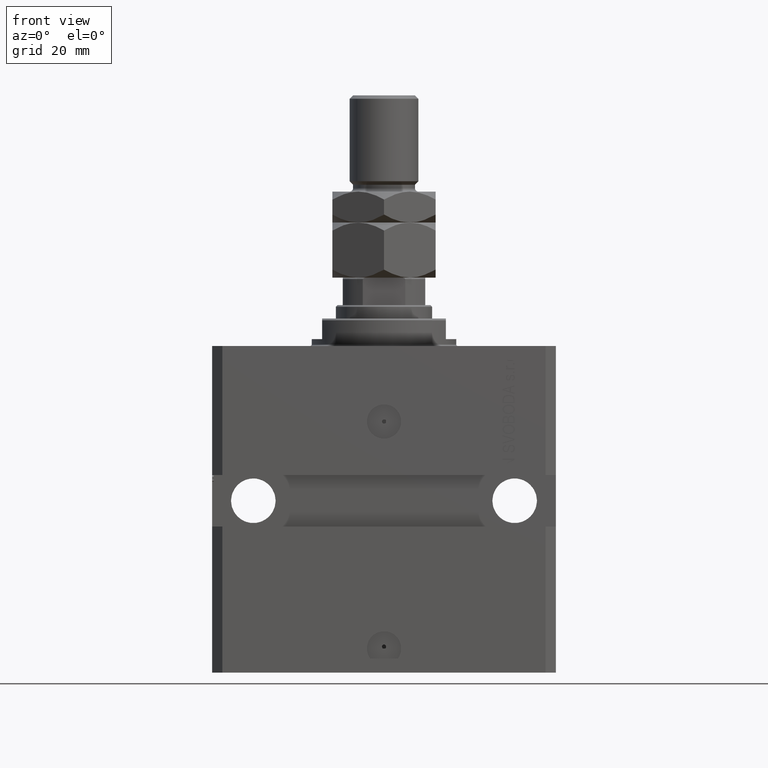
[diagram: clean part render]
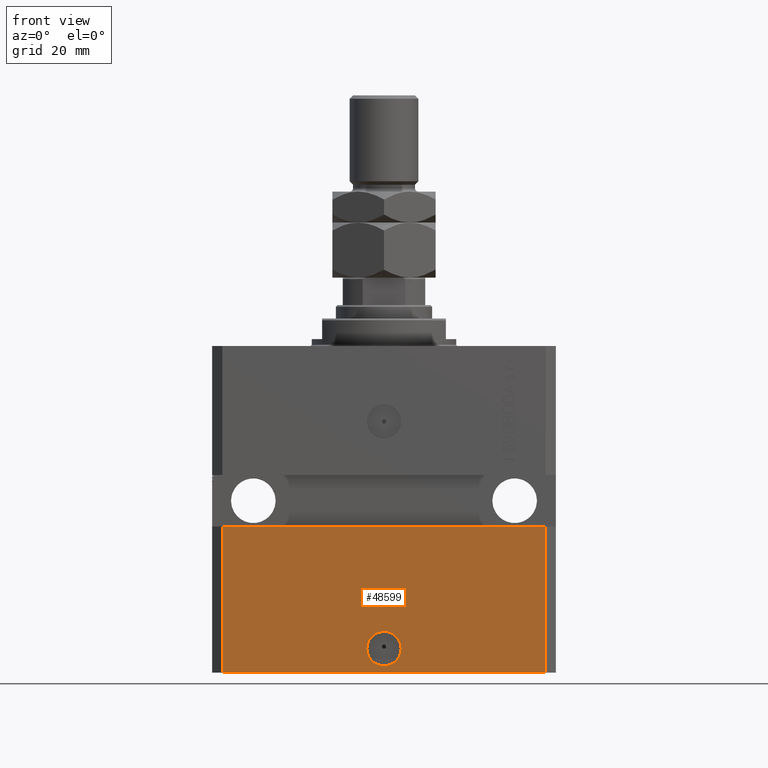
[diagram: same view with one face highlighted and labeled with its STEP entity id]
A machine part, front view. The second image highlights one B-rep face of the part: STEP entity #48599.
In plain terms, the highlighted planar face has unit normal (-0, -1, 0).
Its self-contained STEP definition (entity closure, byte-faithful):
#498 = VERTEX_POINT ( 'NONE', #5023 ) ;
#873 = VERTEX_POINT ( 'NONE', #18083 ) ;
#1629 = CARTESIAN_POINT ( 'NONE',  ( 47.00000000000000000, -37.50000000000000711, -95.00000000000000000 ) ) ;
#5023 = CARTESIAN_POINT ( 'NONE',  ( -5.000000000000011546, -37.50000000000000000, -88.00000000000000000 ) ) ;
#5902 = CARTESIAN_POINT ( 'NONE',  ( -47.00000000000000000, -37.49999999999999289, -95.00000000000000000 ) ) ;
#5956 = LINE ( 'NONE', #13924, #17613 ) ;
#6178 = DIRECTION ( 'NONE',  ( -1.476360405086644556E-16, -1.000000000000000000, 0.000000000000000000 ) ) ;
#6669 = DIRECTION ( 'NONE',  ( 1.000000000000000000, -1.476360405086644556E-16, 0.000000000000000000 ) ) ;
#7496 = DIRECTION ( 'NONE',  ( 1.176083712526788232E-16, -1.000000000000000000, 0.000000000000000000 ) ) ;
#7927 = ORIENTED_EDGE ( 'NONE', *, *, #23271, .F. ) ;
#7946 = EDGE_CURVE ( 'NONE', #40271, #873, #5956, .T. ) ;
#12761 = EDGE_LOOP ( 'NONE', ( #7927, #41297 ) ) ;
#12774 = ORIENTED_EDGE ( 'NONE', *, *, #47793, .F. ) ;
#13924 = CARTESIAN_POINT ( 'NONE',  ( 47.00000000000000000, -37.50000000000000711, -95.00000000000000000 ) ) ;
#15009 = VECTOR ( 'NONE', #33999, 1000.000000000000000 ) ;
#16779 = CIRCLE ( 'NONE', #28716, 5.000000000000006217 ) ;
#17613 = VECTOR ( 'NONE', #24880, 1000.000000000000000 ) ;
#18083 = CARTESIAN_POINT ( 'NONE',  ( 47.00000000000000000, -37.49999999999999289, -52.50000000000000000 ) ) ;
#18265 = VERTEX_POINT ( 'NONE', #43716 ) ;
#18396 = CIRCLE ( 'NONE', #31132, 5.000000000000006217 ) ;
#21373 = PLANE ( 'NONE',  #22962 ) ;
#21954 = EDGE_LOOP ( 'NONE', ( #12774, #30404, #44674, #43688 ) ) ;
#22962 = AXIS2_PLACEMENT_3D ( 'NONE', #48500, #6178, #6669 ) ;
#23271 = EDGE_CURVE ( 'NONE', #18265, #498, #16779, .T. ) ;
#24880 = DIRECTION ( 'NONE',  ( 0.000000000000000000, 0.000000000000000000, 1.000000000000000000 ) ) ;
#26643 = VERTEX_POINT ( 'NONE', #33545 ) ;
#27360 = EDGE_CURVE ( 'NONE', #498, #18265, #18396, .T. ) ;
#28077 = LINE ( 'NONE', #5902, #48725 ) ;
#28606 = FACE_BOUND ( 'NONE', #12761, .T. ) ;
#28716 = AXIS2_PLACEMENT_3D ( 'NONE', #46670, #46906, #35946 ) ;
#30254 = EDGE_CURVE ( 'NONE', #32276, #26643, #42400, .T. ) ;
#30404 = ORIENTED_EDGE ( 'NONE', *, *, #30254, .F. ) ;
#31132 = AXIS2_PLACEMENT_3D ( 'NONE', #40896, #7496, #49095 ) ;
#31145 = EDGE_CURVE ( 'NONE', #32276, #40271, #28077, .T. ) ;
#32276 = VERTEX_POINT ( 'NONE', #49219 ) ;
#32845 = VECTOR ( 'NONE', #46883, 1000.000000000000000 ) ;
#33545 = CARTESIAN_POINT ( 'NONE',  ( -46.99999999999998579, -37.50000000000000711, -52.50000000000000000 ) ) ;
#33999 = DIRECTION ( 'NONE',  ( 1.000000000000000000, 1.387778780781445676E-16, 0.000000000000000000 ) ) ;
#35806 = DIRECTION ( 'NONE',  ( 1.000000000000000000, -1.476360405086644309E-16, 0.000000000000000000 ) ) ;
#35946 = DIRECTION ( 'NONE',  ( 1.000000000000000000, 0.000000000000000000, 0.000000000000000000 ) ) ;
#37736 = LINE ( 'NONE', #45204, #15009 ) ;
#40271 = VERTEX_POINT ( 'NONE', #1629 ) ;
#40896 = CARTESIAN_POINT ( 'NONE',  ( -5.536351519074916863E-15, -37.50000000000000000, -88.00000000000000000 ) ) ;
#41297 = ORIENTED_EDGE ( 'NONE', *, *, #27360, .F. ) ;
#42400 = LINE ( 'NONE', #46645, #32845 ) ;
#43688 = ORIENTED_EDGE ( 'NONE', *, *, #7946, .T. ) ;
#43716 = CARTESIAN_POINT ( 'NONE',  ( 5.000000000000000888, -37.50000000000000000, -88.00000000000000000 ) ) ;
#43792 = FACE_OUTER_BOUND ( 'NONE', #21954, .T. ) ;
#44674 = ORIENTED_EDGE ( 'NONE', *, *, #31145, .T. ) ;
#45204 = CARTESIAN_POINT ( 'NONE',  ( -50.00000000000001421, -37.50000000000000711, -52.50000000000000000 ) ) ;
#46645 = CARTESIAN_POINT ( 'NONE',  ( -47.00000000000000000, -37.49999999999999289, -95.00000000000000000 ) ) ;
#46670 = CARTESIAN_POINT ( 'NONE',  ( -5.536351519074916863E-15, -37.50000000000000000, -88.00000000000000000 ) ) ;
#46883 = DIRECTION ( 'NONE',  ( 0.000000000000000000, 0.000000000000000000, 1.000000000000000000 ) ) ;
#46906 = DIRECTION ( 'NONE',  ( 1.176083712526788232E-16, -1.000000000000000000, 0.000000000000000000 ) ) ;
#47793 = EDGE_CURVE ( 'NONE', #26643, #873, #37736, .T. ) ;
#48500 = CARTESIAN_POINT ( 'NONE',  ( -47.00000000000000000, -37.49999999999999289, -95.00000000000000000 ) ) ;
#48599 = ADVANCED_FACE ( 'NONE', ( #28606, #43792 ), #21373, .T. ) ;
#48725 = VECTOR ( 'NONE', #35806, 1000.000000000000000 ) ;
#49095 = DIRECTION ( 'NONE',  ( 1.000000000000000000, 0.000000000000000000, 0.000000000000000000 ) ) ;
#49219 = CARTESIAN_POINT ( 'NONE',  ( -47.00000000000000000, -37.49999999999999289, -95.00000000000000000 ) ) ;